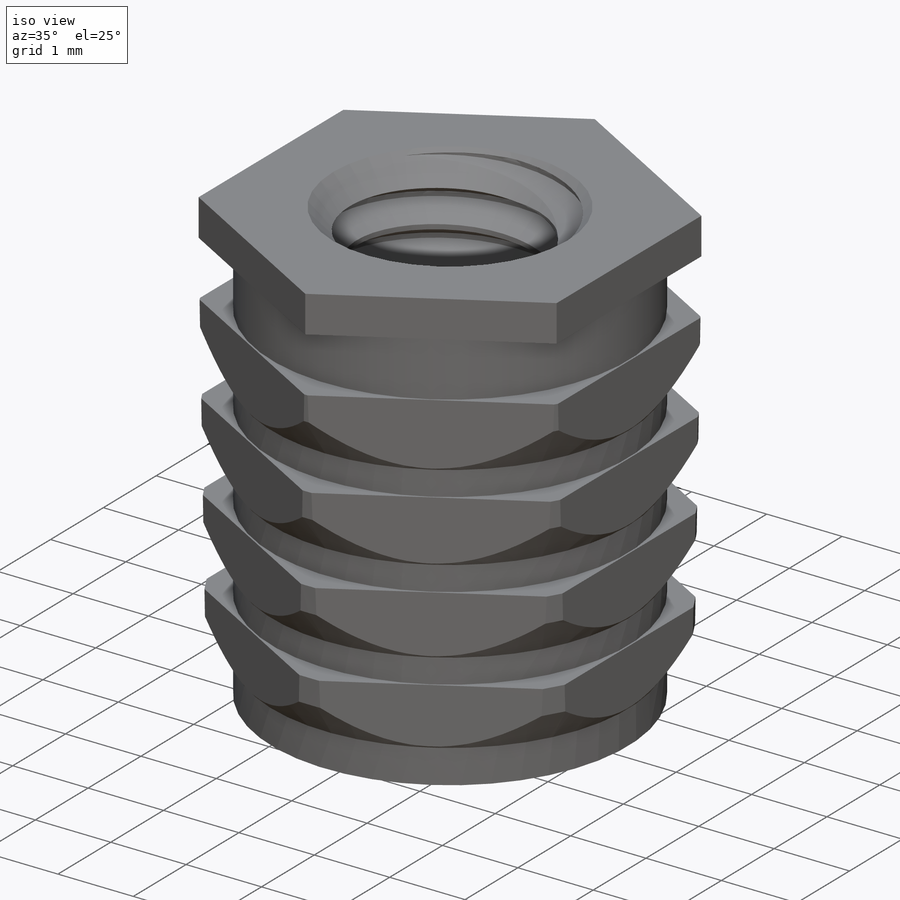
[diagram: iso view]
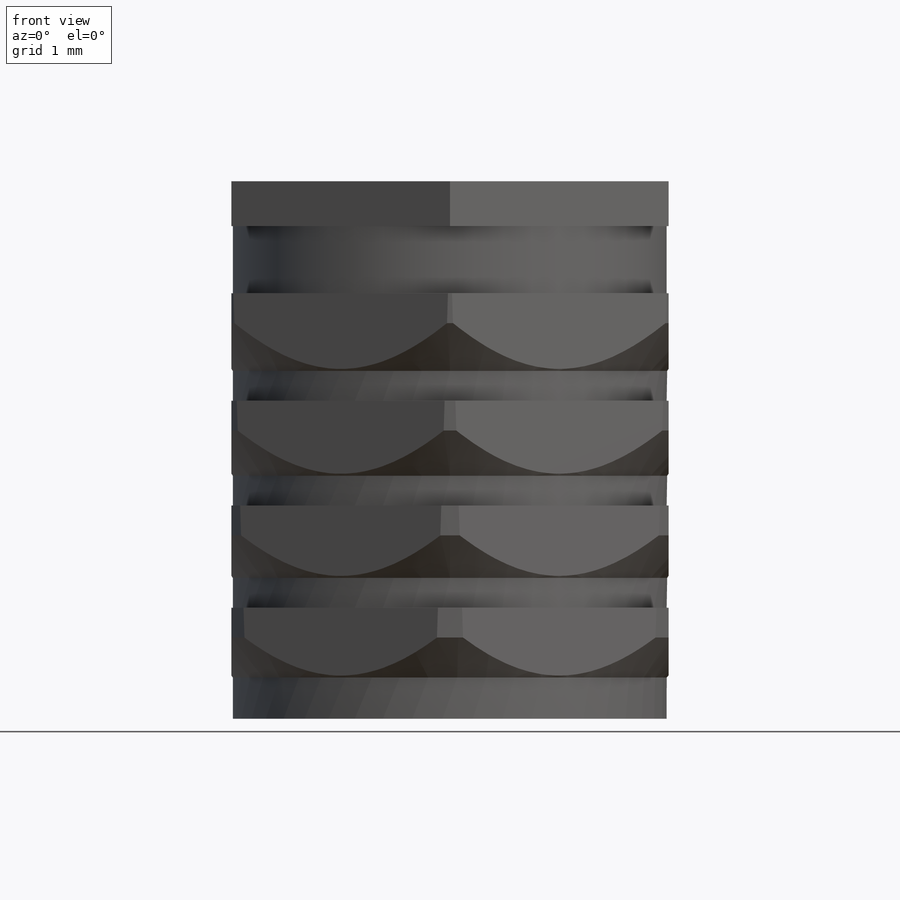
[diagram: front view]
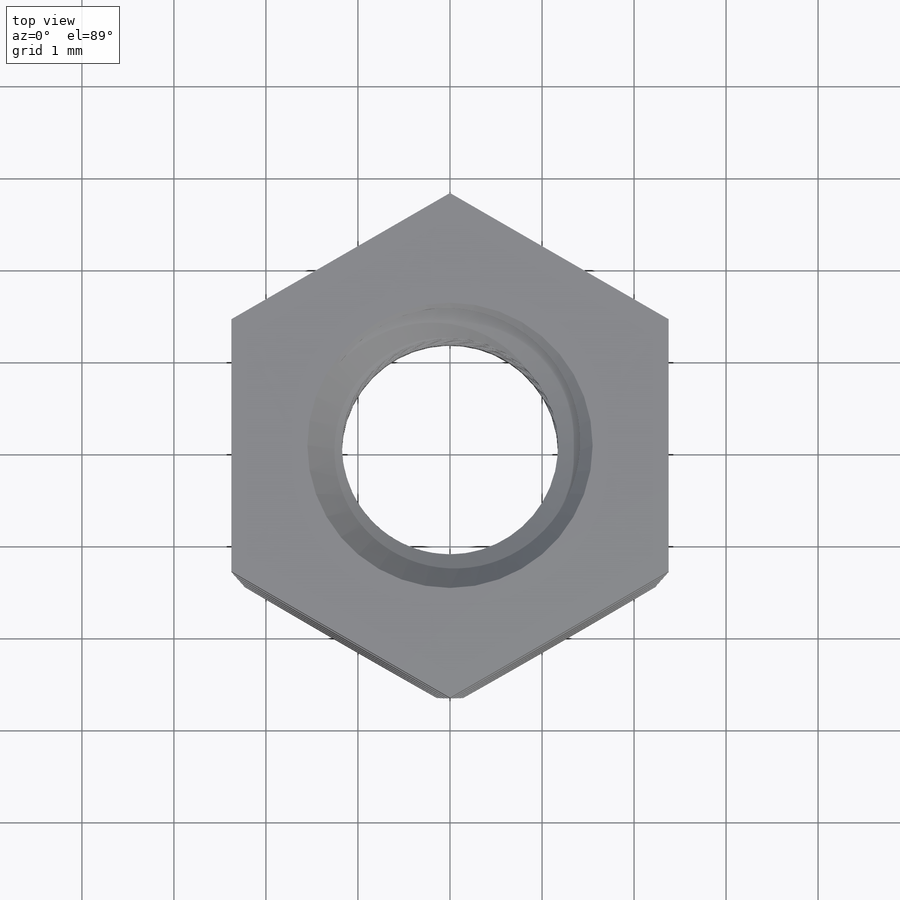
[diagram: top view]
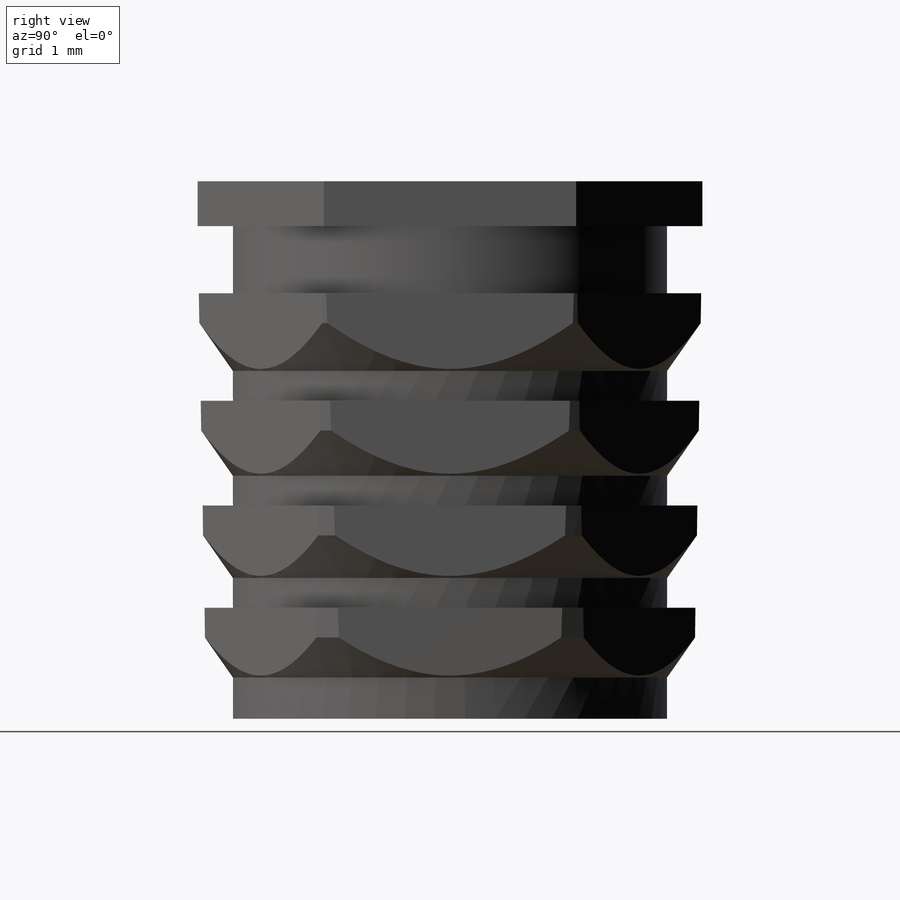
[diagram: right view]
SOLIDWORKS PART (.sldprt)
format: sldprt  version: not decoded by parser v0  size: 610,304 bytes
history: native  units: mm
features: sketch x5, material x1, extrude x1, helix x1, cut_extrude x1, chamfer x1, sweep x1, cut_revolve x1 (+13 scaffold rows collapsed)
feature tree (25):
  scaffold x13  (default folders/planes/origin — collapsed)
  material  "Material <not specified>"
  sketch  "Sketch1"  dims[OD=4.72mm Hex=4.75mm]
  extrude  "Extrude1"  Depth=5.84mm Length=5.84mm
  sketch  "Sketch2"  dims[Internal Thread OD=3.0mm D1=0.0mm]
  helix  "Helix/Spiral1"  Pitch=6.8781mm Internal Thread Height=6.8781mm Internal Thread Pitch=0.5mm
  sketch  "Sketch3"  dims[D1=0.5mm D2=0.0625mm]
  sketch  "Sketch4"  dims[Thread OD=15.875mm]
  cut_extrude  "Extrude2"  [1 undecoded]
  chamfer  "Chamfer1"  Distance=0.375mm Angle=45deg
  sweep  "Cut-Sweep1"
  sketch  "Sketch5"  dims[c1.D1=~5.84762mm c2.D1=2.5deg c3.D1=~0.486667mm c3.D2=5.842mm c4.D2=1.0deg c4.D3=0.254mm c4.D4=0.254mm c4.D5=0.254mm c5.D5=35.0deg c5.D6=0.73mm c5.D3=1.168mm]
  cut_revolve  "Cut-Revolve1"  Angle=360deg
decode coverage: 9 of 11 modeling features carry decoded parameters
note: ~ marks probable driven/reference dimensions
note: 1 parameter value undecoded
note: suppression state not decoded; provenance and decode notes live in map.json
